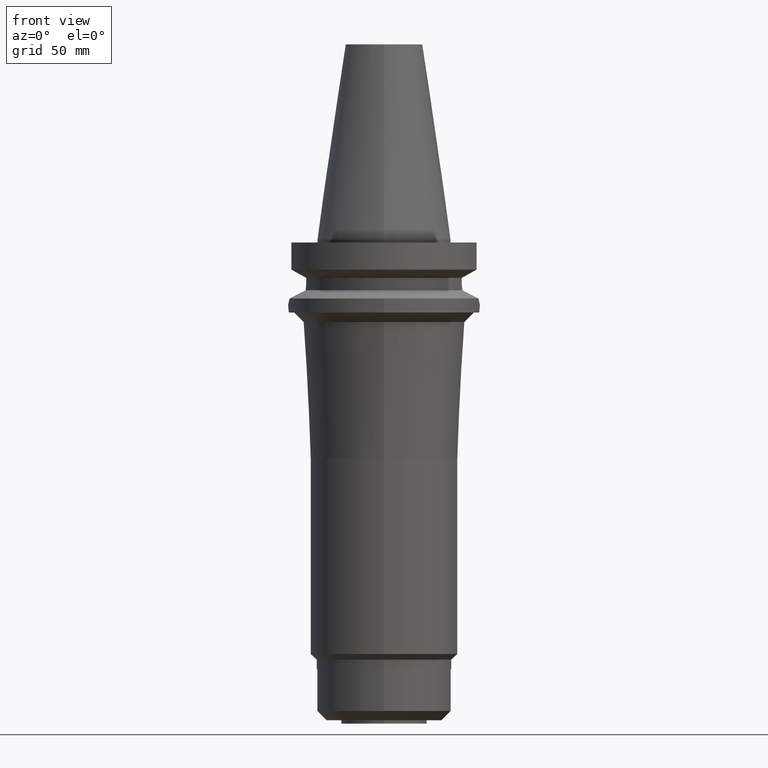
[diagram: clean part render]
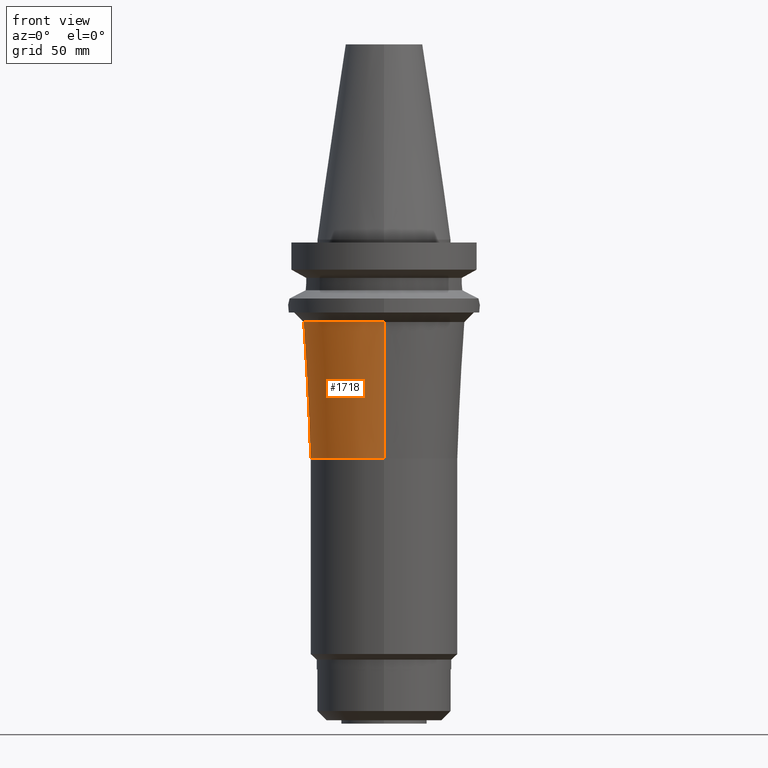
[diagram: same view with one face highlighted and labeled with its STEP entity id]
A machine part, front view. The second image highlights one B-rep face of the part: STEP entity #1718.
In plain terms, the highlighted conical surface has half-angle 2.978 deg.
Its self-contained STEP definition (entity closure, byte-faithful):
#428=DIRECTION('',(0.E0,5.195250617977E-2,-9.986495567023E-1));
#429=VECTOR('',#428,7.109601113173E1);
#430=CARTESIAN_POINT('',(0.E0,-4.219361595768E1,-4.3E1));
#431=LINE('',#430,#429);
#435=CARTESIAN_POINT('',(0.E0,0.E0,-1.14E2));
#436=DIRECTION('',(0.E0,0.E0,-1.E0));
#437=DIRECTION('',(0.E0,-1.E0,0.E0));
#438=AXIS2_PLACEMENT_3D('',#435,#436,#437);
#443=DIRECTION('',(0.E0,-5.195250617977E-2,-9.986495567023E-1));
#444=VECTOR('',#443,7.109601113173E1);
#445=CARTESIAN_POINT('',(0.E0,4.219361595768E1,-4.3E1));
#446=LINE('',#445,#444);
#480=CARTESIAN_POINT('',(0.E0,0.E0,-4.3E1));
#481=DIRECTION('',(0.E0,0.E0,-1.E0));
#482=DIRECTION('',(0.E0,-1.E0,0.E0));
#483=AXIS2_PLACEMENT_3D('',#480,#481,#482);
#1193=CARTESIAN_POINT('',(0.E0,3.85E1,-1.14E2));
#1194=VERTEX_POINT('',#1193);
#1195=CARTESIAN_POINT('',(0.E0,-3.85E1,-1.14E2));
#1196=VERTEX_POINT('',#1195);
#1197=CARTESIAN_POINT('',(0.E0,4.219361595768E1,-4.3E1));
#1198=VERTEX_POINT('',#1197);
#1199=CARTESIAN_POINT('',(0.E0,-4.219361595768E1,-4.3E1));
#1200=VERTEX_POINT('',#1199);
#1704=CARTESIAN_POINT('',(0.E0,0.E0,-7.85E1));
#1705=DIRECTION('',(0.E0,0.E0,1.E0));
#1706=DIRECTION('',(0.E0,1.E0,0.E0));
#1707=AXIS2_PLACEMENT_3D('',#1704,#1705,#1706);
#1708=CONICAL_SURFACE('',#1707,4.034680797884E1,2.978E0);
#1710=ORIENTED_EDGE('',*,*,#1709,.F.);
#1712=ORIENTED_EDGE('',*,*,#1711,.F.);
#1714=ORIENTED_EDGE('',*,*,#1713,.T.);
#1715=ORIENTED_EDGE('',*,*,#1697,.T.);
#1716=EDGE_LOOP('',(#1710,#1712,#1714,#1715));
#1717=FACE_OUTER_BOUND('',#1716,.F.);
#439=CIRCLE('',#438,3.85E1);
#484=CIRCLE('',#483,4.219361595768E1);
#1697=EDGE_CURVE('',#1196,#1194,#439,.T.);
#1709=EDGE_CURVE('',#1198,#1194,#446,.T.);
#1711=EDGE_CURVE('',#1200,#1198,#484,.T.);
#1713=EDGE_CURVE('',#1200,#1196,#431,.T.);
#1718=ADVANCED_FACE('',(#1717),#1708,.T.);